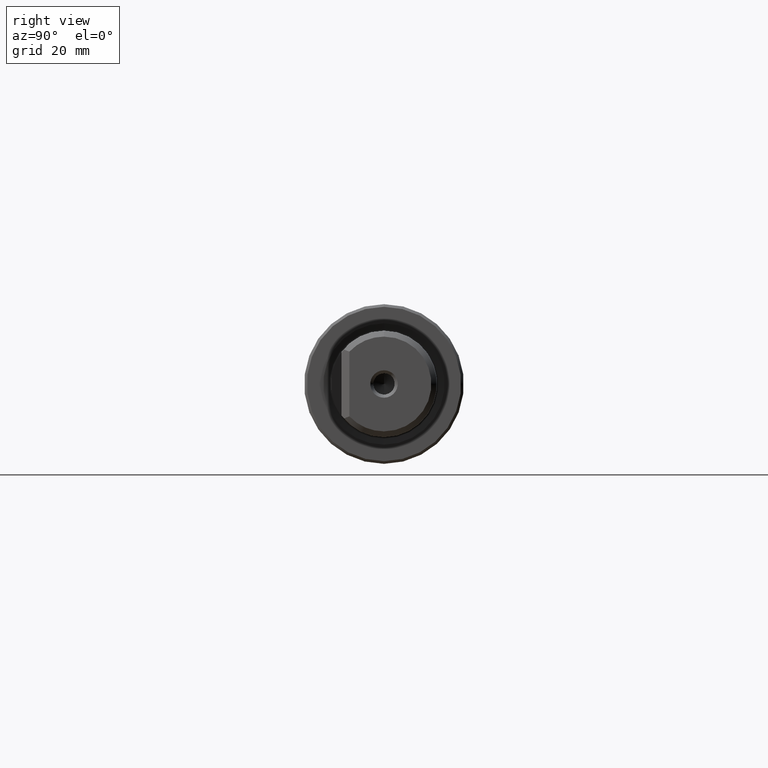
[diagram: clean part render]
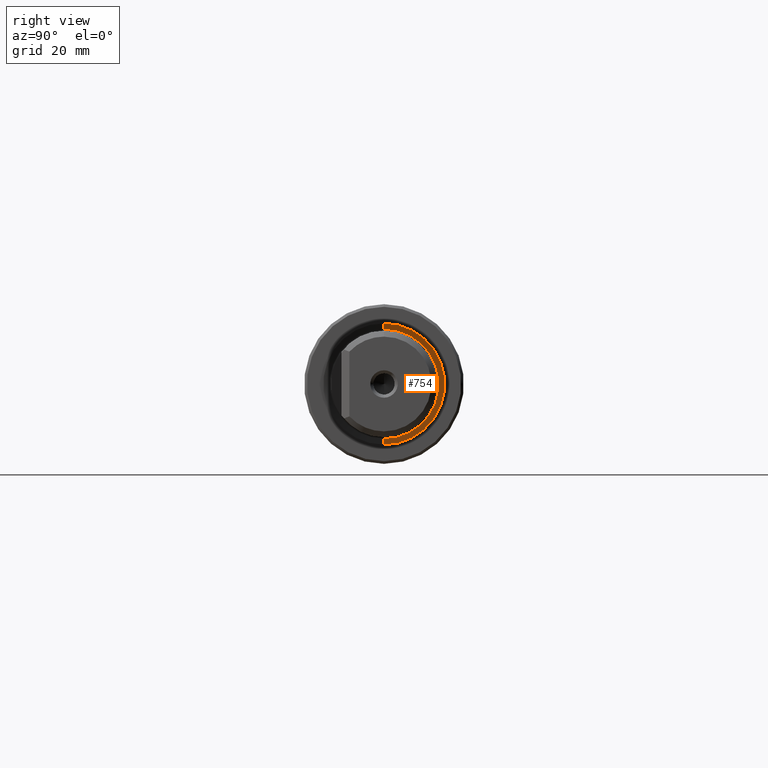
[diagram: same view with one face highlighted and labeled with its STEP entity id]
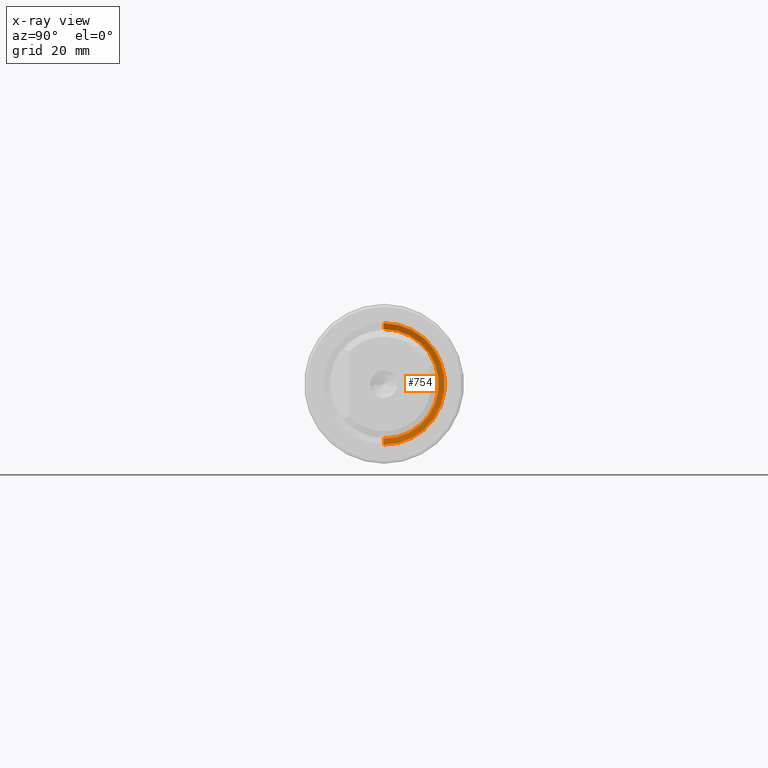
[diagram: x-ray of the same camera — body ghosted, the highlighted face saturated]
A machine part, right view. The second image highlights one B-rep face of the part: STEP entity #754.
The next image is the same camera in x-ray: the body ghosted, the highlighted face saturated — about 0% of this face is hidden behind the body in this view.
In plain terms, the highlighted conical surface has half-angle 74.85 deg.
Its self-contained STEP definition (entity closure, byte-faithful):
#54 = LINE ( 'NONE', #704, #610 ) ;
#75 = ORIENTED_EDGE ( 'NONE', *, *, #119, .T. ) ;
#98 = VERTEX_POINT ( 'NONE', #846 ) ;
#111 = LINE ( 'NONE', #402, #1207 ) ;
#116 = ORIENTED_EDGE ( 'NONE', *, *, #1058, .F. ) ;
#119 = EDGE_CURVE ( 'NONE', #622, #1179, #54, .T. ) ;
#153 = CIRCLE ( 'NONE', #464, 11.40000000000001100 ) ;
#158 = CARTESIAN_POINT ( 'NONE',  ( 79.95000000000000300, 0.0000000000000000000, -10.29203245983837600 ) ) ;
#167 = ORIENTED_EDGE ( 'NONE', *, *, #310, .T. ) ;
#198 = EDGE_CURVE ( 'NONE', #622, #1114, #798, .T. ) ;
#206 = DIRECTION ( 'NONE',  ( 1.000000000000000000, -0.0000000000000000000, -0.0000000000000000000 ) ) ;
#236 = FACE_OUTER_BOUND ( 'NONE', #1033, .T. ) ;
#245 = CARTESIAN_POINT ( 'NONE',  ( 80.25000000000000000, 0.0000000000000000000, 0.0000000000000000000 ) ) ;
#310 = EDGE_CURVE ( 'NONE', #1179, #98, #153, .T. ) ;
#319 = DIRECTION ( 'NONE',  ( 0.0000000000000000000, 0.0000000000000000000, -1.000000000000000000 ) ) ;
#327 = ORIENTED_EDGE ( 'NONE', *, *, #198, .F. ) ;
#388 = DIRECTION ( 'NONE',  ( 1.000000000000000000, -0.0000000000000000000, -0.0000000000000000000 ) ) ;
#402 = CARTESIAN_POINT ( 'NONE',  ( 80.25000000000000000, 1.396097351027984000E-015, 11.40000000000001100 ) ) ;
#419 = CARTESIAN_POINT ( 'NONE',  ( 79.95000000000000300, 0.0000000000000000000, 0.0000000000000000000 ) ) ;
#464 = AXIS2_PLACEMENT_3D ( 'NONE', #896, #206, #563 ) ;
#523 = AXIS2_PLACEMENT_3D ( 'NONE', #419, #1190, #756 ) ;
#563 = DIRECTION ( 'NONE',  ( 0.0000000000000000000, 0.0000000000000000000, -1.000000000000000000 ) ) ;
#610 = VECTOR ( 'NONE', #681, 1000.000000000000000 ) ;
#622 = VERTEX_POINT ( 'NONE', #158 ) ;
#656 = CARTESIAN_POINT ( 'NONE',  ( 80.25000000000000000, 0.0000000000000000000, -11.40000000000001100 ) ) ;
#681 = DIRECTION ( 'NONE',  ( 0.2613549732255697800, 0.0000000000000000000, -0.9652427559791690900 ) ) ;
#704 = CARTESIAN_POINT ( 'NONE',  ( 80.25000000000000000, 0.0000000000000000000, -11.40000000000001100 ) ) ;
#754 = ADVANCED_FACE ( 'NONE', ( #236 ), #1066, .F. ) ;
#756 = DIRECTION ( 'NONE',  ( 0.0000000000000000000, 0.0000000000000000000, -1.000000000000000000 ) ) ;
#798 = CIRCLE ( 'NONE', #523, 10.29203245983837300 ) ;
#824 = AXIS2_PLACEMENT_3D ( 'NONE', #245, #388, #319 ) ;
#826 = DIRECTION ( 'NONE',  ( 0.2613549732255697800, 1.182081451510059100E-016, 0.9652427559791690900 ) ) ;
#846 = CARTESIAN_POINT ( 'NONE',  ( 80.25000000000000000, 1.396097351027984000E-015, 11.40000000000001100 ) ) ;
#896 = CARTESIAN_POINT ( 'NONE',  ( 80.25000000000000000, 0.0000000000000000000, 0.0000000000000000000 ) ) ;
#1033 = EDGE_LOOP ( 'NONE', ( #116, #327, #75, #167 ) ) ;
#1058 = EDGE_CURVE ( 'NONE', #1114, #98, #111, .T. ) ;
#1066 = CONICAL_SURFACE ( 'NONE', #824, 11.40000000000001100, 1.306370625903561700 ) ;
#1107 = CARTESIAN_POINT ( 'NONE',  ( 79.95000000000000300, 1.260410460866172600E-015, 10.29203245983837600 ) ) ;
#1114 = VERTEX_POINT ( 'NONE', #1107 ) ;
#1179 = VERTEX_POINT ( 'NONE', #656 ) ;
#1190 = DIRECTION ( 'NONE',  ( 1.000000000000000000, -0.0000000000000000000, -0.0000000000000000000 ) ) ;
#1207 = VECTOR ( 'NONE', #826, 1000.000000000000000 ) ;